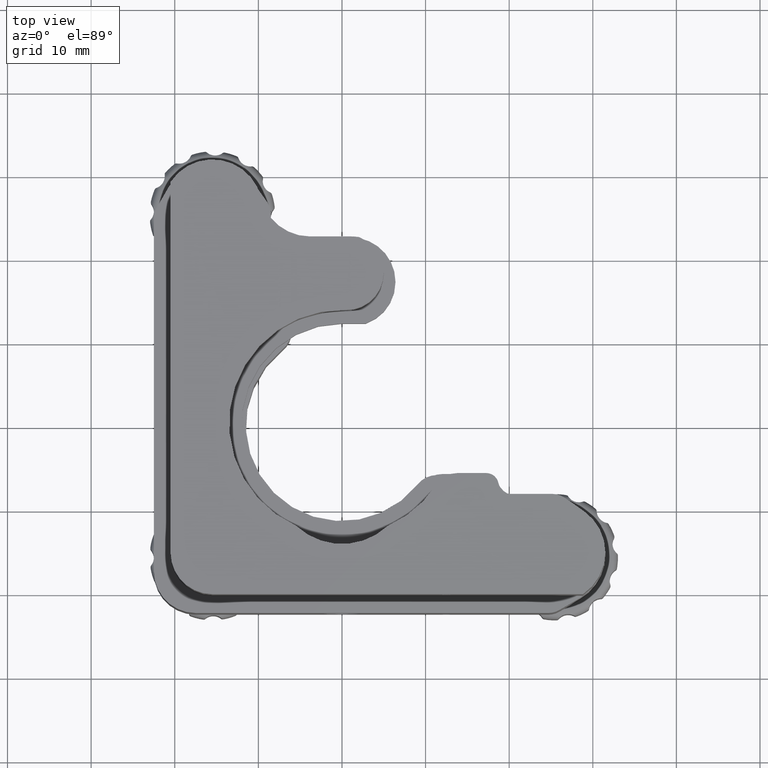
[diagram: clean part render]
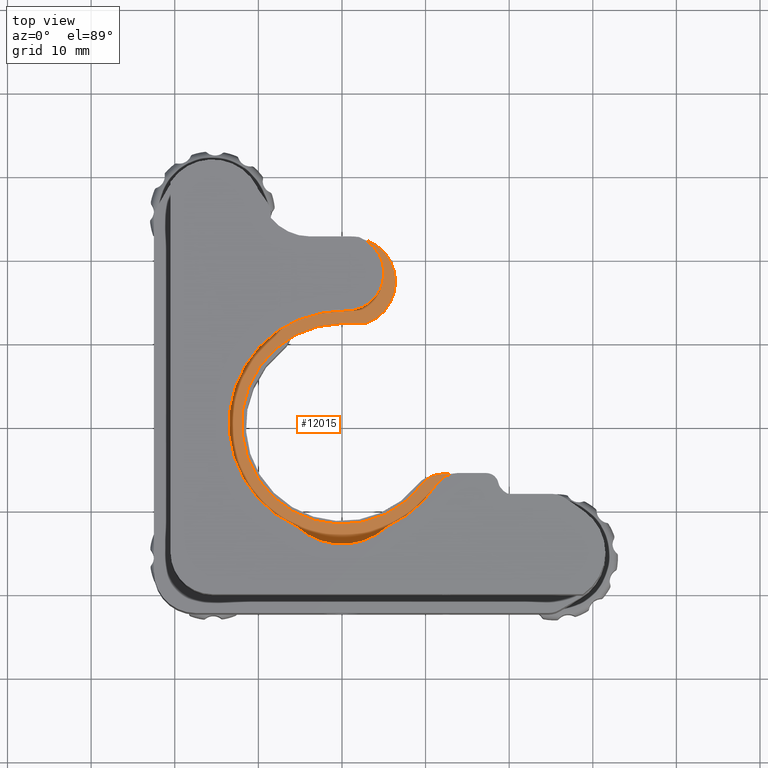
[diagram: same view with one face highlighted and labeled with its STEP entity id]
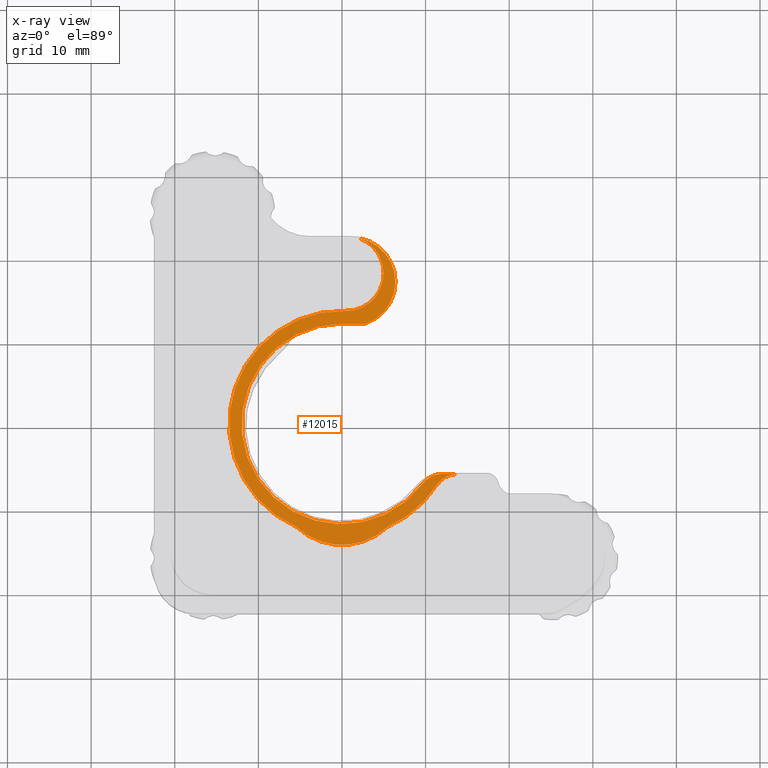
[diagram: x-ray of the same camera — body ghosted, the highlighted face saturated]
A machine part, top view. The second image highlights one B-rep face of the part: STEP entity #12015.
The next image is the same camera in x-ray: the body ghosted, the highlighted face saturated — about 0% of this face is hidden behind the body in this view.
In plain terms, the highlighted planar face has unit normal (0, 0, 1).
Its self-contained STEP definition (entity closure, byte-faithful):
#229 = EDGE_CURVE ( 'NONE', #20366, #10100, #4432, .T. ) ;
#303 = ORIENTED_EDGE ( 'NONE', *, *, #14085, .T. ) ;
#535 = DIRECTION ( 'NONE',  ( -1.000000000000000000, 0.0000000000000000000, 0.0000000000000000000 ) ) ;
#578 = CARTESIAN_POINT ( 'NONE',  ( 6.399943360757200500, 17.00028445054341100, 7.000000000000001800 ) ) ;
#869 = AXIS2_PLACEMENT_3D ( 'NONE', #3911, #18805, #17105 ) ;
#898 = CIRCLE ( 'NONE', #2180, 4.499999999999997300 ) ;
#1083 = VERTEX_POINT ( 'NONE', #15816 ) ;
#1120 = EDGE_CURVE ( 'NONE', #4107, #2221, #17729, .T. ) ;
#1161 = ORIENTED_EDGE ( 'NONE', *, *, #19131, .T. ) ;
#1243 = EDGE_CURVE ( 'NONE', #12822, #10120, #10264, .T. ) ;
#1436 = VERTEX_POINT ( 'NONE', #20591 ) ;
#1530 = CARTESIAN_POINT ( 'NONE',  ( -5.461053362103986500, -12.34586939561043400, 7.000000000000001800 ) ) ;
#2064 = CARTESIAN_POINT ( 'NONE',  ( -5.663924280384614500E-005, 0.0002844505434125637000, 7.000000000000001800 ) ) ;
#2180 = AXIS2_PLACEMENT_3D ( 'NONE', #18698, #8802, #2385 ) ;
#2221 = VERTEX_POINT ( 'NONE', #10158 ) ;
#2229 = DIRECTION ( 'NONE',  ( -0.0000000000000000000, -0.0000000000000000000, -1.000000000000000000 ) ) ;
#2310 = AXIS2_PLACEMENT_3D ( 'NONE', #2064, #20186, #6998 ) ;
#2385 = DIRECTION ( 'NONE',  ( 1.000000000000000000, 0.0000000000000000000, 0.0000000000000000000 ) ) ;
#2591 = CARTESIAN_POINT ( 'NONE',  ( -5.663924280384614500E-005, 12.00028445054341500, 7.000000000000001800 ) ) ;
#3084 = DIRECTION ( 'NONE',  ( -0.0000000000000000000, -0.0000000000000000000, -1.000000000000000000 ) ) ;
#3272 = DIRECTION ( 'NONE',  ( 1.000000000000000000, 0.0000000000000000000, 0.0000000000000000000 ) ) ;
#3407 = CARTESIAN_POINT ( 'NONE',  ( -5.663924280384614500E-005, -6.499715549456587900, 7.000000000000001800 ) ) ;
#3911 = CARTESIAN_POINT ( 'NONE',  ( 13.82926004669652700, -8.999715549456588800, 7.000000000000001800 ) ) ;
#3955 = CARTESIAN_POINT ( 'NONE',  ( -5.663924280384614500E-005, 0.0002844505434125637000, 7.000000000000001800 ) ) ;
#4107 = VERTEX_POINT ( 'NONE', #18013 ) ;
#4432 = CIRCLE ( 'NONE', #10000, 8.000000000000000000 ) ;
#4609 = CARTESIAN_POINT ( 'NONE',  ( 0.3749433607571968100, 13.49507511212834900, 7.000000000000001800 ) ) ;
#4720 = DIRECTION ( 'NONE',  ( 1.000000000000000000, -6.546126324440781600E-016, 0.0000000000000000000 ) ) ;
#4727 = ORIENTED_EDGE ( 'NONE', *, *, #1120, .F. ) ;
#5384 = DIRECTION ( 'NONE',  ( 0.0000000000000000000, 0.0000000000000000000, 1.000000000000000000 ) ) ;
#5518 = CARTESIAN_POINT ( 'NONE',  ( 1.099943360757199800, 17.00028445054341100, 7.000000000000001800 ) ) ;
#5627 = AXIS2_PLACEMENT_3D ( 'NONE', #3955, #16931, #12241 ) ;
#5801 = CIRCLE ( 'NONE', #16570, 4.499999999999997300 ) ;
#5895 = ORIENTED_EDGE ( 'NONE', *, *, #6664, .F. ) ;
#6078 = CARTESIAN_POINT ( 'NONE',  ( 11.99994336075719700, -5.999715549456587900, 7.000000000000001800 ) ) ;
#6216 = CARTESIAN_POINT ( 'NONE',  ( 5.460940083618374400, -12.34586939561043600, 7.000000000000001800 ) ) ;
#6664 = EDGE_CURVE ( 'NONE', #7389, #19975, #13403, .T. ) ;
#6789 = DIRECTION ( 'NONE',  ( -0.0000000000000000000, -0.0000000000000000000, -1.000000000000000000 ) ) ;
#6900 = DIRECTION ( 'NONE',  ( 1.000000000000000000, 0.0000000000000000000, -0.0000000000000000000 ) ) ;
#6998 = DIRECTION ( 'NONE',  ( 1.000000000000000000, 0.0000000000000000000, 0.0000000000000000000 ) ) ;
#7349 = AXIS2_PLACEMENT_3D ( 'NONE', #17541, #10999, #14210 ) ;
#7364 = EDGE_CURVE ( 'NONE', #10100, #1083, #17055, .T. ) ;
#7389 = VERTEX_POINT ( 'NONE', #578 ) ;
#7942 = CARTESIAN_POINT ( 'NONE',  ( 2.068937483528112700, 22.21095143184584600, 7.000000000000001800 ) ) ;
#8135 = CIRCLE ( 'NONE', #869, 3.000000000000000900 ) ;
#8448 = DIRECTION ( 'NONE',  ( 1.000000000000000000, 0.0000000000000000000, 0.0000000000000000000 ) ) ;
#8461 = DIRECTION ( 'NONE',  ( 1.000000000000000000, 0.0000000000000000000, 0.0000000000000000000 ) ) ;
#8525 = CARTESIAN_POINT ( 'NONE',  ( -5.663924280384614500E-005, 12.00028445054341500, 7.000000000000001800 ) ) ;
#8626 = EDGE_CURVE ( 'NONE', #1436, #20159, #898, .T. ) ;
#8740 = PLANE ( 'NONE',  #13266 ) ;
#8802 = DIRECTION ( 'NONE',  ( -0.0000000000000000000, -0.0000000000000000000, -1.000000000000000000 ) ) ;
#8857 = VERTEX_POINT ( 'NONE', #7942 ) ;
#8941 = ORIENTED_EDGE ( 'NONE', *, *, #7364, .T. ) ;
#8997 = VECTOR ( 'NONE', #8461, 1000.000000000000000 ) ;
#10000 = AXIS2_PLACEMENT_3D ( 'NONE', #3407, #16589, #3272 ) ;
#10047 = ORIENTED_EDGE ( 'NONE', *, *, #19010, .F. ) ;
#10100 = VERTEX_POINT ( 'NONE', #6216 ) ;
#10120 = VERTEX_POINT ( 'NONE', #12783 ) ;
#10136 = CIRCLE ( 'NONE', #12553, 5.299999999999999800 ) ;
#10158 = CARTESIAN_POINT ( 'NONE',  ( 13.82926004669652700, -5.999715549456587900, 7.000000000000001800 ) ) ;
#10264 = CIRCLE ( 'NONE', #5627, 12.00000000000000200 ) ;
#10700 = CIRCLE ( 'NONE', #20781, 2.999999999999999100 ) ;
#10796 = ORIENTED_EDGE ( 'NONE', *, *, #20605, .T. ) ;
#10999 = DIRECTION ( 'NONE',  ( 0.0000000000000000000, 0.0000000000000000000, 1.000000000000000000 ) ) ;
#11006 = FACE_OUTER_BOUND ( 'NONE', #15239, .T. ) ;
#11507 = CARTESIAN_POINT ( 'NONE',  ( 0.4999433607571961400, 17.99333866598999200, 7.000000000000001800 ) ) ;
#11754 = AXIS2_PLACEMENT_3D ( 'NONE', #5518, #2229, #8448 ) ;
#12015 = ADVANCED_FACE ( 'NONE', ( #11006 ), #8740, .T. ) ;
#12241 = DIRECTION ( 'NONE',  ( 1.000000000000000000, 0.0000000000000000000, 0.0000000000000000000 ) ) ;
#12349 = ORIENTED_EDGE ( 'NONE', *, *, #1243, .F. ) ;
#12497 = DIRECTION ( 'NONE',  ( -0.0000000000000000000, -0.0000000000000000000, -1.000000000000000000 ) ) ;
#12553 = AXIS2_PLACEMENT_3D ( 'NONE', #12864, #3084, #4720 ) ;
#12567 = CARTESIAN_POINT ( 'NONE',  ( 11.99994336075719700, -8.999715549456588800, 7.000000000000001800 ) ) ;
#12783 = CARTESIAN_POINT ( 'NONE',  ( 9.599943360757196200, -7.199715549456589900, 7.000000000000001800 ) ) ;
#12822 = VERTEX_POINT ( 'NONE', #2591 ) ;
#12864 = CARTESIAN_POINT ( 'NONE',  ( 1.099943360757199800, 17.00028445054341100, 7.000000000000001800 ) ) ;
#13266 = AXIS2_PLACEMENT_3D ( 'NONE', #18354, #5384, #6900 ) ;
#13403 = CIRCLE ( 'NONE', #11754, 5.299999999999999800 ) ;
#14085 = EDGE_CURVE ( 'NONE', #1083, #2221, #8135, .T. ) ;
#14210 = DIRECTION ( 'NONE',  ( 1.000000000000000000, 0.0000000000000000000, 0.0000000000000000000 ) ) ;
#14804 = VECTOR ( 'NONE', #535, 1000.000000000000000 ) ;
#15239 = EDGE_LOOP ( 'NONE', ( #16046, #12349, #18942, #5895, #10047, #1161, #16164, #10796, #20077, #8941, #303, #4727 ) ) ;
#15816 = CARTESIAN_POINT ( 'NONE',  ( 11.31483883107119400, -7.363351913092952100, 7.000000000000001800 ) ) ;
#16046 = ORIENTED_EDGE ( 'NONE', *, *, #17264, .F. ) ;
#16164 = ORIENTED_EDGE ( 'NONE', *, *, #8626, .T. ) ;
#16244 = DIRECTION ( 'NONE',  ( 1.000000000000000000, 0.0000000000000000000, 0.0000000000000000000 ) ) ;
#16570 = AXIS2_PLACEMENT_3D ( 'NONE', #11507, #6789, #19904 ) ;
#16589 = DIRECTION ( 'NONE',  ( 0.0000000000000000000, 0.0000000000000000000, 1.000000000000000000 ) ) ;
#16931 = DIRECTION ( 'NONE',  ( 0.0000000000000000000, 0.0000000000000000000, 1.000000000000000000 ) ) ;
#17055 = CIRCLE ( 'NONE', #2310, 13.50000000000000000 ) ;
#17105 = DIRECTION ( 'NONE',  ( 1.000000000000000000, 0.0000000000000000000, 0.0000000000000000000 ) ) ;
#17133 = EDGE_CURVE ( 'NONE', #19975, #12822, #18132, .T. ) ;
#17264 = EDGE_CURVE ( 'NONE', #10120, #4107, #10700, .T. ) ;
#17306 = CARTESIAN_POINT ( 'NONE',  ( 2.857782943881900000, 12.00028445054341500, 7.000000000000001800 ) ) ;
#17541 = CARTESIAN_POINT ( 'NONE',  ( -5.663924280384614500E-005, 0.0002844505434125637000, 7.000000000000001800 ) ) ;
#17729 = LINE ( 'NONE', #6078, #8997 ) ;
#18013 = CARTESIAN_POINT ( 'NONE',  ( 11.99994336075719700, -5.999715549456588800, 7.000000000000001800 ) ) ;
#18132 = LINE ( 'NONE', #8525, #14804 ) ;
#18354 = CARTESIAN_POINT ( 'NONE',  ( -5.663924280384614500E-005, -6.499715549456587900, 7.000000000000001800 ) ) ;
#18698 = CARTESIAN_POINT ( 'NONE',  ( 0.4999433607571961400, 17.99333866598999200, 7.000000000000001800 ) ) ;
#18805 = DIRECTION ( 'NONE',  ( -0.0000000000000000000, -0.0000000000000000000, -1.000000000000000000 ) ) ;
#18942 = ORIENTED_EDGE ( 'NONE', *, *, #17133, .F. ) ;
#19010 = EDGE_CURVE ( 'NONE', #8857, #7389, #10136, .T. ) ;
#19131 = EDGE_CURVE ( 'NONE', #8857, #1436, #5801, .T. ) ;
#19904 = DIRECTION ( 'NONE',  ( 1.000000000000000000, 0.0000000000000000000, 0.0000000000000000000 ) ) ;
#19975 = VERTEX_POINT ( 'NONE', #17306 ) ;
#20077 = ORIENTED_EDGE ( 'NONE', *, *, #229, .T. ) ;
#20159 = VERTEX_POINT ( 'NONE', #4609 ) ;
#20186 = DIRECTION ( 'NONE',  ( 0.0000000000000000000, 0.0000000000000000000, 1.000000000000000000 ) ) ;
#20366 = VERTEX_POINT ( 'NONE', #1530 ) ;
#20591 = CARTESIAN_POINT ( 'NONE',  ( 4.999943360757193000, 17.99333866598999200, 7.000000000000001800 ) ) ;
#20605 = EDGE_CURVE ( 'NONE', #20159, #20366, #20647, .T. ) ;
#20647 = CIRCLE ( 'NONE', #7349, 13.50000000000000000 ) ;
#20781 = AXIS2_PLACEMENT_3D ( 'NONE', #12567, #12497, #16244 ) ;